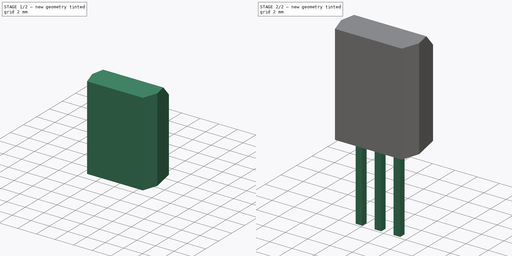
[diagram: build sequence overview — one tinted view per stage of 2, left to right]
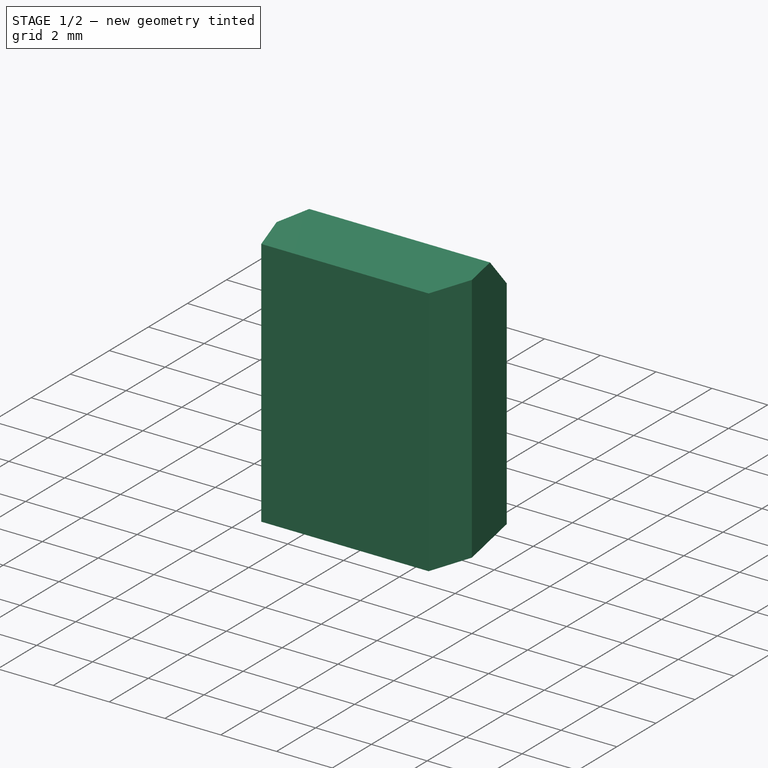
[diagram: stage 1 of 2 — iso view after this stage's code; geometry added in this stage tinted green]
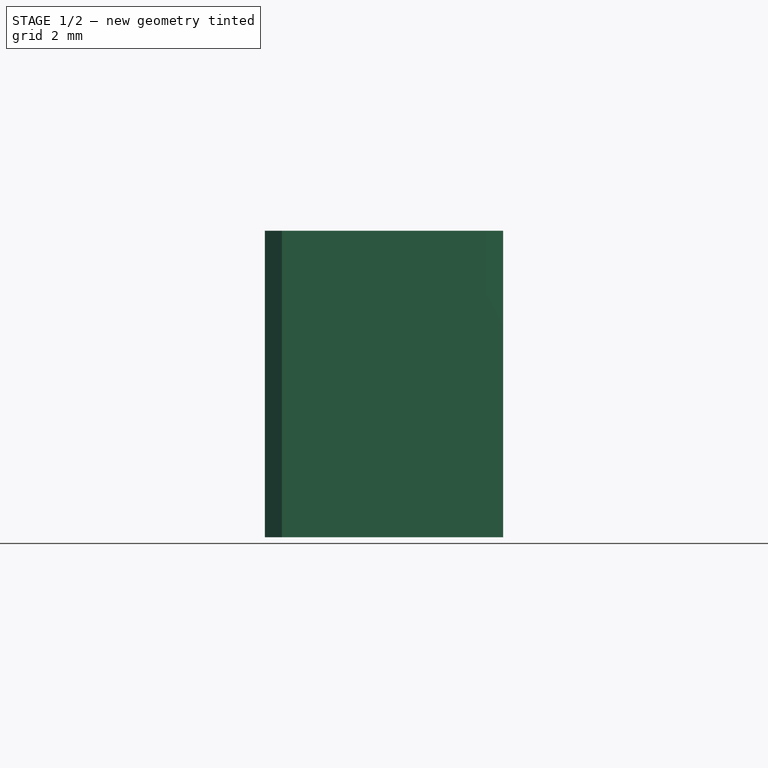
[diagram: stage 1 of 2 — front view after this stage's code; geometry added in this stage tinted green]
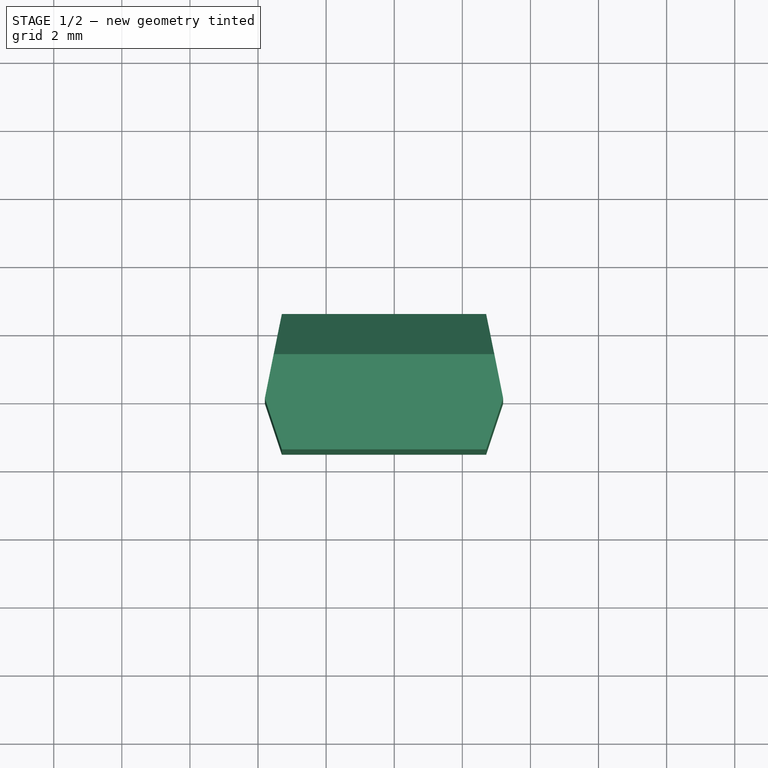
[diagram: stage 1 of 2 — top view after this stage's code; geometry added in this stage tinted green]
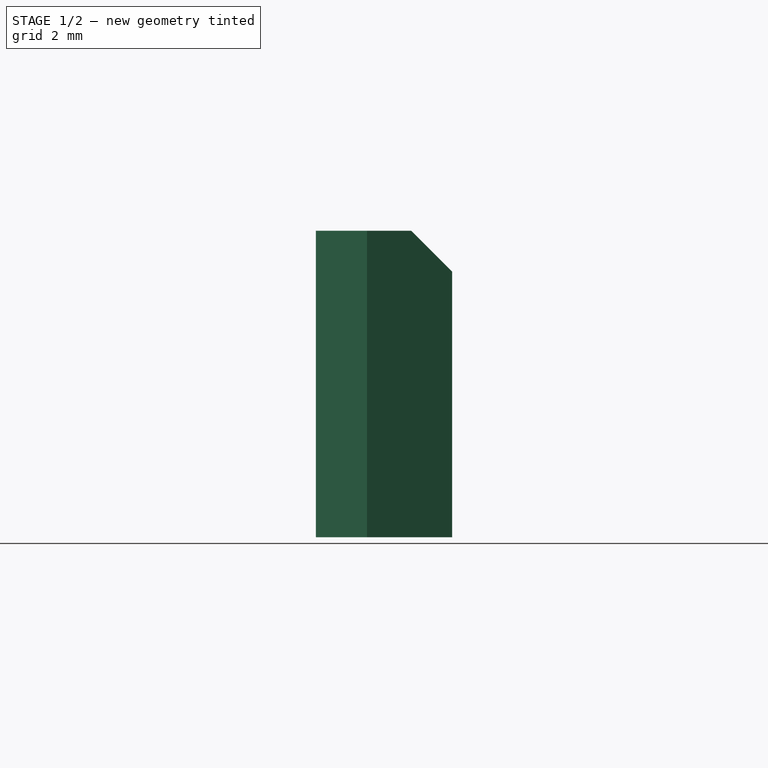
[diagram: stage 1 of 2 — right view after this stage's code; geometry added in this stage tinted green]
FCSTD DOCUMENT  (FreeCAD 0.16R6712 (Git))
Label: NEC_Molded_7x4x9mm
License: All rights reserved
LicenseURL: http://en.wikipedia.org/wiki/All_rights_reserved
objects: Part::Feature×3, Sketcher::SketchObject×2, PartDesign::Pad×2, PartDesign::Chamfer×1, App::DocumentObjectGroup×1, Part::MultiFuse×1
note: 11 computed .brp shape members not serialized (recipe doc carries the construction recipe); baked Part::Feature solids carry a one-line shape summary decoded from their .brp

FEATURE [PartDesign::Pad] Pad
  Length = 9
  Length2 = 100
  Placement = pos=(0,0,4) rot=(0,0,1;0rad)
  Sketch = -> Sketch
  Type = 0
FEATURE [PartDesign::Chamfer] Chamfer
  Base = -> Pad [Edge4]
  Placement = pos=(0,0,4) rot=(0,0,1;0rad)
  Size = 1.2
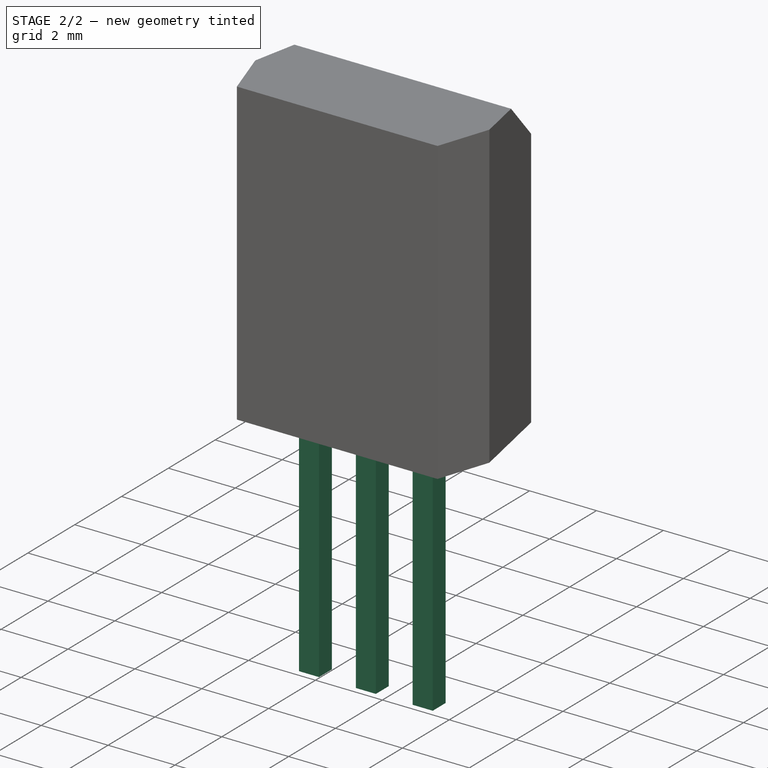
[diagram: stage 2 of 2 — iso view after this stage's code; geometry added in this stage tinted green]
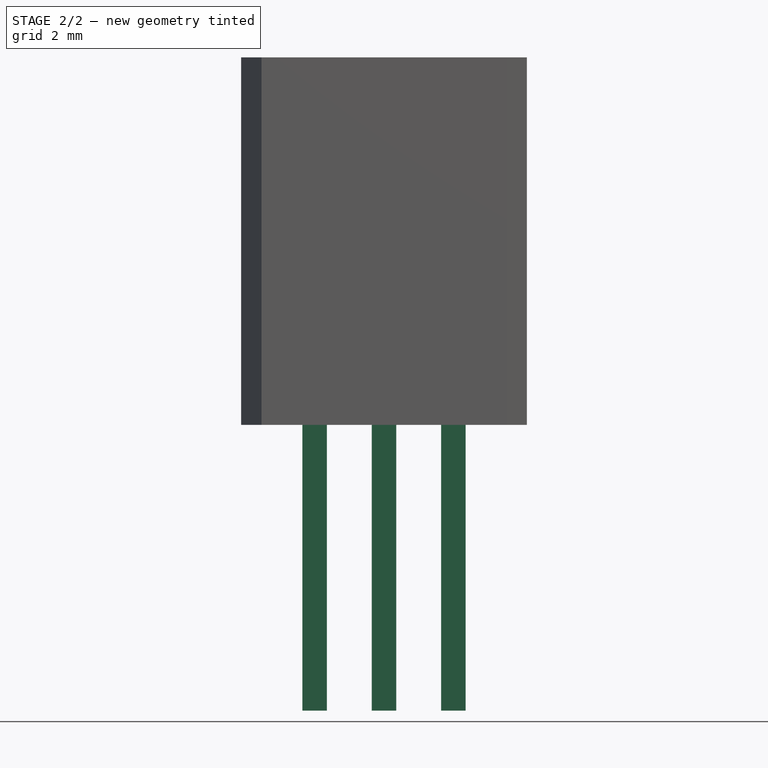
[diagram: stage 2 of 2 — front view after this stage's code; geometry added in this stage tinted green]
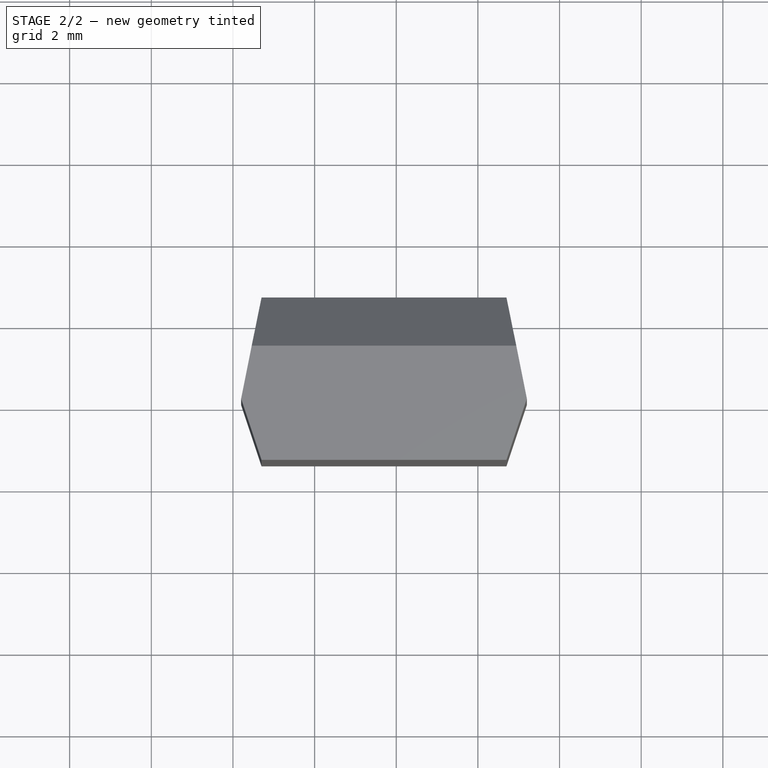
[diagram: stage 2 of 2 — top view after this stage's code; geometry added in this stage tinted green]
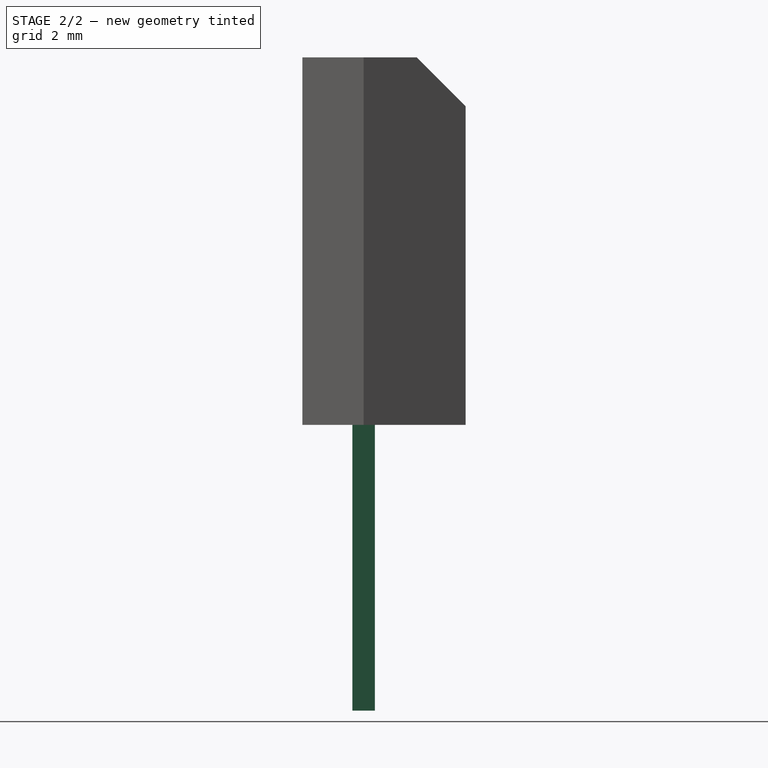
[diagram: stage 2 of 2 — right view after this stage's code; geometry added in this stage tinted green]
FEATURE [Sketcher::SketchObject] Sketch
  Placement = pos=(0,0,4) rot=(0,0,1;0rad)
  expr: Constraints[18] = 3
  expr: Constraints[17] = 3
  sketch-geometry (7):
    g0: LineSegment [constr] StartX=0 StartY=0 StartZ=0 EndX=1.7 EndY=0 EndZ=0
    g1: LineSegment StartX=-1.3 StartY=2.5 StartZ=0 EndX=4.7 EndY=2.5 EndZ=0
    g2: LineSegment StartX=4.7 StartY=2.5 StartZ=0 EndX=5.2 EndY=0 EndZ=0
    g3: LineSegment StartX=5.2 StartY=0 StartZ=0 EndX=4.7 EndY=-1.5 EndZ=0
    g4: LineSegment StartX=4.7 StartY=-1.5 StartZ=0 EndX=-1.3 EndY=-1.5 EndZ=0
    g5: LineSegment StartX=-1.3 StartY=-1.5 StartZ=0 EndX=-1.8 EndY=0 EndZ=0
    g6: LineSegment StartX=-1.8 StartY=0 StartZ=0 EndX=-1.3 EndY=2.5 EndZ=0
  constraints (21):
    c: Coincident(g0,g-1)
    c: Horizontal(g0)
    c: DistanceX(g0,g0) = 1.7
    c: Horizontal(g1)
    c: PointOnObject(g2,g-1)
    c: Horizontal(g4)
    c: PointOnObject(g5,g-1)
    c: Coincident(g6,g1)
    c: Coincident(g1,g2)
    c: DistanceX(g1,g1) = 6
    c: DistanceX(g4,g4) = 6
    c: Coincident(g5,g4)
    c: Coincident(g3,g4)
    c: DistanceX(g5,g2) = 7
    c: Coincident(g5,g6)
    c: Coincident(g2,g3)
    c: DistanceX(g5,g0) = 3.5
    c: DistanceX(g1,g0) = 3
    c: DistanceX(g4,g0) = 3
    c: DistanceY(g3,g1) = 4
    c: DistanceY(g3,g2) = 1.5
FEATURE [Sketcher::SketchObject] Sketch001
  Placement = pos=(0,0,4) rot=(0,0,1;0rad)
  sketch-geometry (13):
    g0: LineSegment StartX=-0.3 StartY=0.275 StartZ=0 EndX=0.3 EndY=0.275 EndZ=0
    g1: LineSegment StartX=0.3 StartY=0.275 StartZ=0 EndX=0.3 EndY=-0.275 EndZ=0
    g2: LineSegment StartX=0.3 StartY=-0.275 StartZ=0 EndX=-0.3 EndY=-0.275 EndZ=0
    g3: LineSegment StartX=-0.3 StartY=-0.275 StartZ=0 EndX=-0.3 EndY=0.275 EndZ=0
    g4: LineSegment [constr] StartX=-0.3 StartY=0 StartZ=0 EndX=0.3 EndY=0 EndZ=0
    g5: LineSegment StartX=1.4 StartY=0.275 StartZ=0 EndX=2 EndY=0.275 EndZ=0
    g6: LineSegment StartX=2 StartY=0.275 StartZ=0 EndX=2 EndY=-0.275 EndZ=0
    g7: LineSegment StartX=2 StartY=-0.275 StartZ=0 EndX=1.4 EndY=-0.275 EndZ=0
    g8: LineSegment StartX=1.4 StartY=-0.275 StartZ=0 EndX=1.4 EndY=0.275 EndZ=0
    g9: LineSegment StartX=3.1 StartY=0.275 StartZ=0 EndX=3.7 EndY=0.275 EndZ=0
    g10: LineSegment StartX=3.7 StartY=0.275 StartZ=0 EndX=3.7 EndY=-0.275 EndZ=0
    g11: LineSegment StartX=3.7 StartY=-0.275 StartZ=0 EndX=3.1 EndY=-0.275 EndZ=0
    g12: LineSegment StartX=3.1 StartY=-0.275 StartZ=0 EndX=3.1 EndY=0.275 EndZ=0
  constraints (40):
    c: Coincident(g0,g1)
    c: Coincident(g1,g2)
    c: Coincident(g2,g3)
    c: Coincident(g3,g0)
    c: Horizontal(g0)
    c: Horizontal(g2)
    c: Vertical(g1)
    c: Vertical(g3)
    c: DistanceX(g0,g0) = 0.6
    c: DistanceY(g1,g1) = 0.55
    c: PointOnObject(g4,g3)
    c: PointOnObject(g4,g1)
    c: Horizontal(g4)
    c: PointOnObject(g-1,g4)
    c: Symmetric(g1,g1,g4)
    c: Symmetric(g4,g4,g-1)
    c: Coincident(g5,g6)
    c: Coincident(g6,g7)
    c: Coincident(g7,g8)
    c: Coincident(g8,g5)
    c: Horizontal(g5)
    c: Horizontal(g7)
    c: Vertical(g6)
    c: Vertical(g8)
    c: Coincident(g9,g10)
    c: Coincident(g10,g11)
    c: Coincident(g11,g12)
    c: Coincident(g12,g9)
    c: Horizontal(g9)
    c: Horizontal(g11)
    c: Vertical(g10)
    c: Vertical(g12)
    c: Equal(g5,g0)
    c: Equal(g9,g0)
    c: Equal(g3,g12)
    c: Equal(g8,g3)
    c: DistanceX(g0,g5) = 1.7
    c: DistanceX(g5,g9) = 1.7
    c: DistanceY(g0,g5) = 0
    c: DistanceY(g9,g0) = 0
FEATURE [PartDesign::Pad] Pad001
  Length = 7
  Length2 = 100
  Placement = pos=(0,0,4) rot=(0,0,1;0rad)
  Reversed = true
  Sketch = -> Sketch001
  Type = 0
FEATURE [Part::Feature] FusionAxisZ1  label="Z"
  shape: bbox 0.8 x 0.8 x 14 mm, 8 faces (baked)
FEATURE [Part::Feature] FusionAxisY1  label="Y"
  Placement = pos=(0,0,0.05) rot=(-1,0,0;1.5708rad)
  shape: bbox 0.8 x 14 x 0.8 mm, 8 faces (baked)
FEATURE [Part::Feature] FusionAxisX1  label="X"
  Placement = pos=(0,-0.05,0) rot=(0,1,0;1.5708rad)
  shape: bbox 14 x 0.8 x 0.8 mm, 8 faces (baked)
FEATURE [App::DocumentObjectGroup] axis
  Group = -> [FusionAxisZ1,FusionAxisY1,FusionAxisX1]
FEATURE [Part::MultiFuse] Pad001_mp_cp  label="NEC_Molded_7x4x9mm"
  Shapes = -> [Pad001,Chamfer]
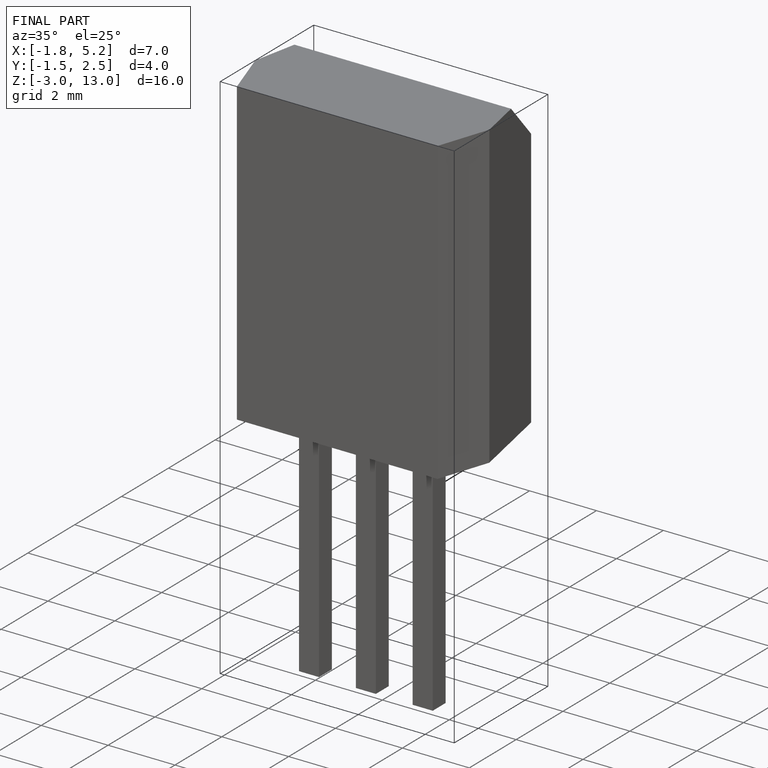
[diagram: finished part — iso view with bounding-box wireframe]
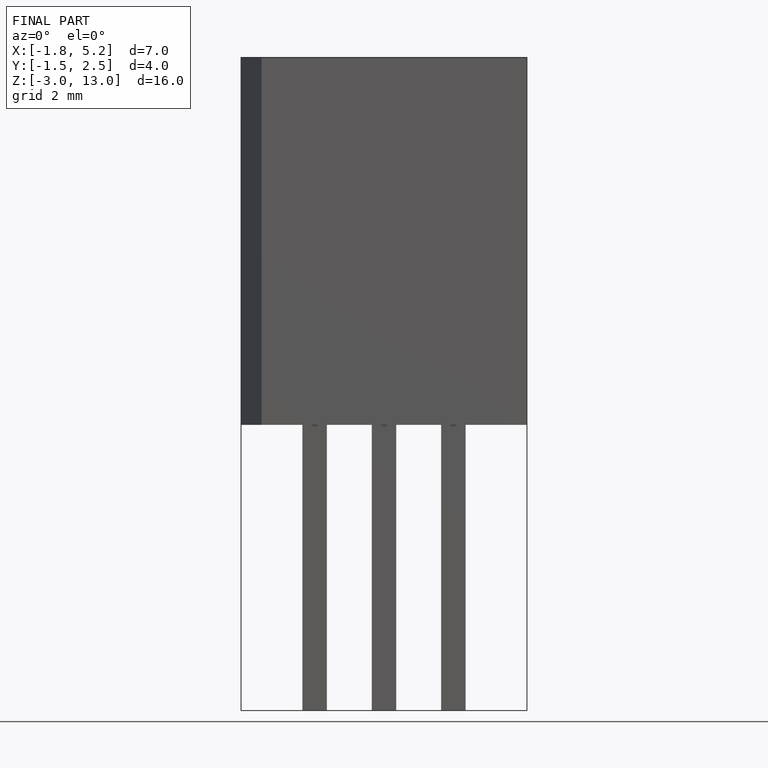
[diagram: finished part — front view with bounding-box wireframe]
